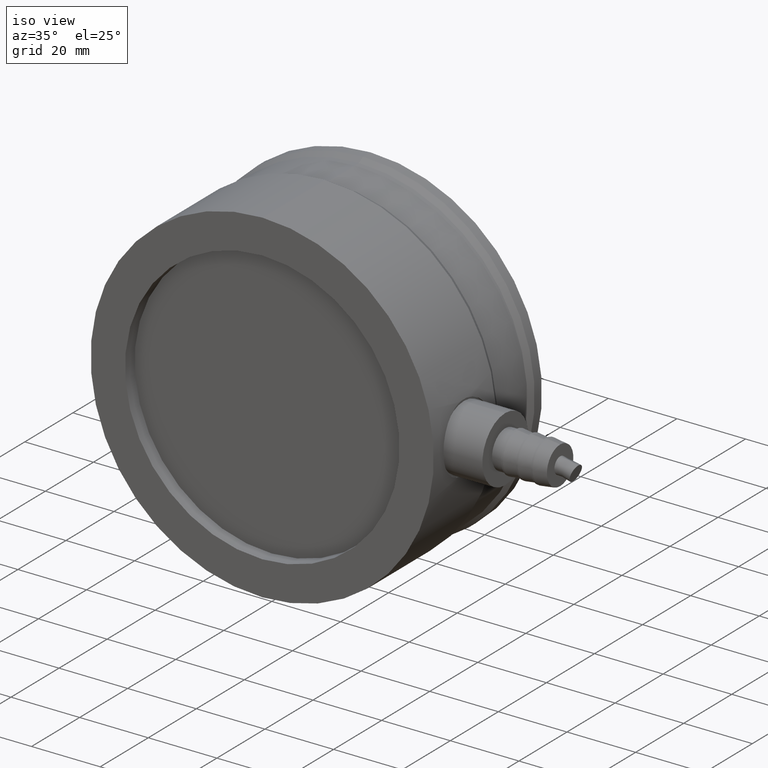
[diagram: clean part render]
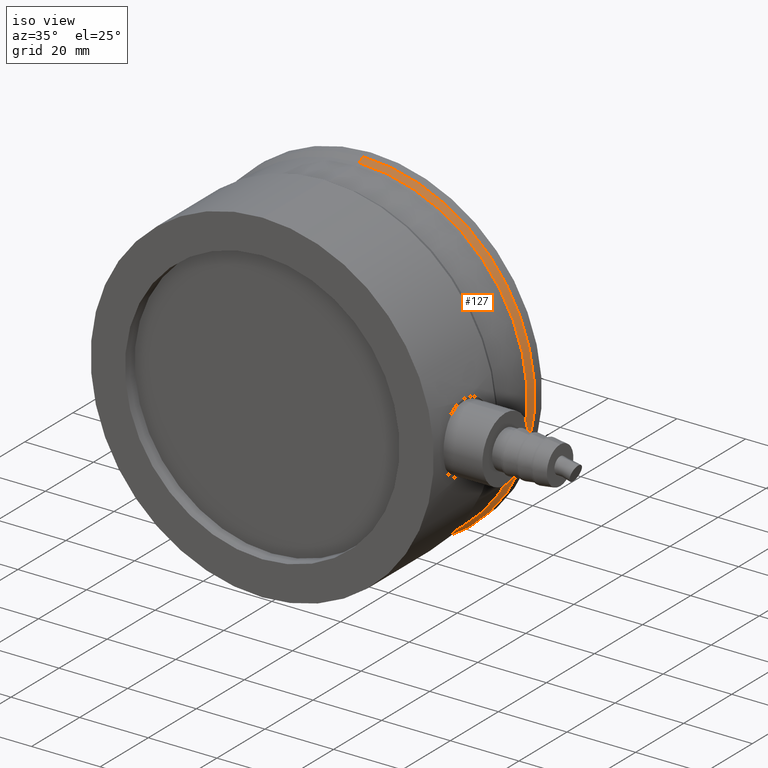
[diagram: same view with one face highlighted and labeled with its STEP entity id]
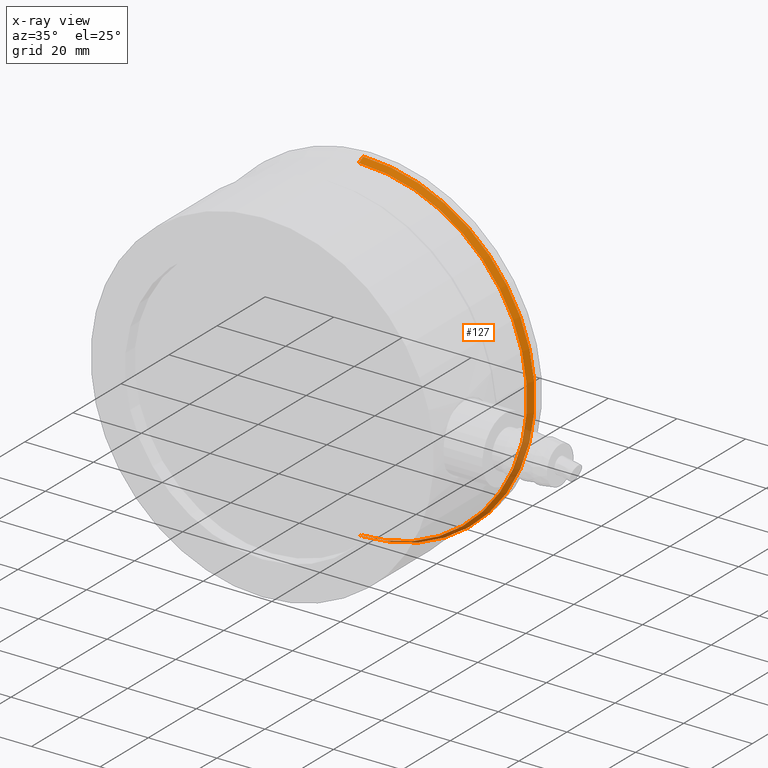
[diagram: x-ray of the same camera — body ghosted, the highlighted face saturated]
A machine part, iso view. The second image highlights one B-rep face of the part: STEP entity #127.
The next image is the same camera in x-ray: the body ghosted, the highlighted face saturated — about 15% of this face is hidden behind the body in this view.
In plain terms, the highlighted conical surface has half-angle 30 deg.
Its self-contained STEP definition (entity closure, byte-faithful):
#2 = ORIENTED_EDGE ( 'NONE', *, *, #14, .T. ) ;
#14 = EDGE_CURVE ( 'NONE', #131, #16, #1309, .T. ) ;
#15 = EDGE_CURVE ( 'NONE', #133, #16, #1310, .T. ) ;
#16 = VERTEX_POINT ( 'NONE', #443 ) ;
#18 = ORIENTED_EDGE ( 'NONE', *, *, #15, .F. ) ;
#20 = EDGE_CURVE ( 'NONE', #84, #131, #440, .T. ) ;
#84 = VERTEX_POINT ( 'NONE', #527 ) ;
#127 = ADVANCED_FACE ( 'NONE', ( #657 ), #647, .T. ) ;
#128 = EDGE_LOOP ( 'NONE', ( #129, #130, #2, #18 ) ) ;
#129 = ORIENTED_EDGE ( 'NONE', *, *, #132, .F. ) ;
#130 = ORIENTED_EDGE ( 'NONE', *, *, #20, .T. ) ;
#131 = VERTEX_POINT ( 'NONE', #658 ) ;
#132 = EDGE_CURVE ( 'NONE', #84, #133, #668, .T. ) ;
#133 = VERTEX_POINT ( 'NONE', #670 ) ;
#437 = DIRECTION ( 'NONE',  ( 6.123031769111795100E-017, 0.8660254037844429300, -0.4999999999999925600 ) ) ;
#438 = VECTOR ( 'NONE', #437, 1000.000000000000000 ) ;
#439 = CARTESIAN_POINT ( 'NONE',  ( 5.939340816038530500E-015, 35.40192378864662000, -48.50000000000000000 ) ) ;
#440 = LINE ( 'NONE', #439, #438 ) ;
#443 = CARTESIAN_POINT ( 'NONE',  ( 6.123031769111886300E-015, 37.99999999999999300, 50.00000000000000000 ) ) ;
#527 = CARTESIAN_POINT ( 'NONE',  ( 6.061801451420768200E-015, 36.26794919243107500, -49.00000000000000000 ) ) ;
#621 = CARTESIAN_POINT ( 'NONE',  ( 0.0000000000000000000, 35.40192378864662000, 0.0000000000000000000 ) ) ;
#622 = AXIS2_PLACEMENT_3D ( 'NONE', #621, #660, #659 ) ;
#625 = DIRECTION ( 'NONE',  ( 0.0000000000000000000, 0.0000000000000000000, 1.000000000000000000 ) ) ;
#647 = CONICAL_SURFACE ( 'NONE', #622, 48.50000000000000000, 0.5235987755982902700 ) ;
#657 = FACE_OUTER_BOUND ( 'NONE', #128, .T. ) ;
#658 = CARTESIAN_POINT ( 'NONE',  ( 0.0000000000000000000, 37.99999999999999300, -50.00000000000000000 ) ) ;
#659 = DIRECTION ( 'NONE',  ( 0.0000000000000000000, 0.0000000000000000000, 1.000000000000000000 ) ) ;
#660 = DIRECTION ( 'NONE',  ( 0.0000000000000000000, 1.000000000000000000, 0.0000000000000000000 ) ) ;
#668 = CIRCLE ( 'NONE', #708, 49.00000000000000000 ) ;
#670 = CARTESIAN_POINT ( 'NONE',  ( 0.0000000000000000000, 36.26794919243107500, 49.00000000000000000 ) ) ;
#706 = DIRECTION ( 'NONE',  ( -0.0000000000000000000, -1.000000000000000000, -0.0000000000000000000 ) ) ;
#707 = CARTESIAN_POINT ( 'NONE',  ( 0.0000000000000000000, 36.26794919243107500, 0.0000000000000000000 ) ) ;
#708 = AXIS2_PLACEMENT_3D ( 'NONE', #707, #706, #625 ) ;
#1302 = DIRECTION ( 'NONE',  ( 0.0000000000000000000, 0.8660254037844429300, 0.4999999999999925600 ) ) ;
#1303 = VECTOR ( 'NONE', #1302, 1000.000000000000000 ) ;
#1304 = CARTESIAN_POINT ( 'NONE',  ( 0.0000000000000000000, 35.40192378864662000, 48.50000000000000000 ) ) ;
#1305 = DIRECTION ( 'NONE',  ( 0.0000000000000000000, 0.0000000000000000000, -1.000000000000000000 ) ) ;
#1306 = DIRECTION ( 'NONE',  ( -0.0000000000000000000, -1.000000000000000000, -0.0000000000000000000 ) ) ;
#1307 = CARTESIAN_POINT ( 'NONE',  ( 0.0000000000000000000, 37.99999999999999300, 0.0000000000000000000 ) ) ;
#1308 = AXIS2_PLACEMENT_3D ( 'NONE', #1307, #1306, #1305 ) ;
#1309 = CIRCLE ( 'NONE', #1308, 50.00000000000000000 ) ;
#1310 = LINE ( 'NONE', #1304, #1303 ) ;